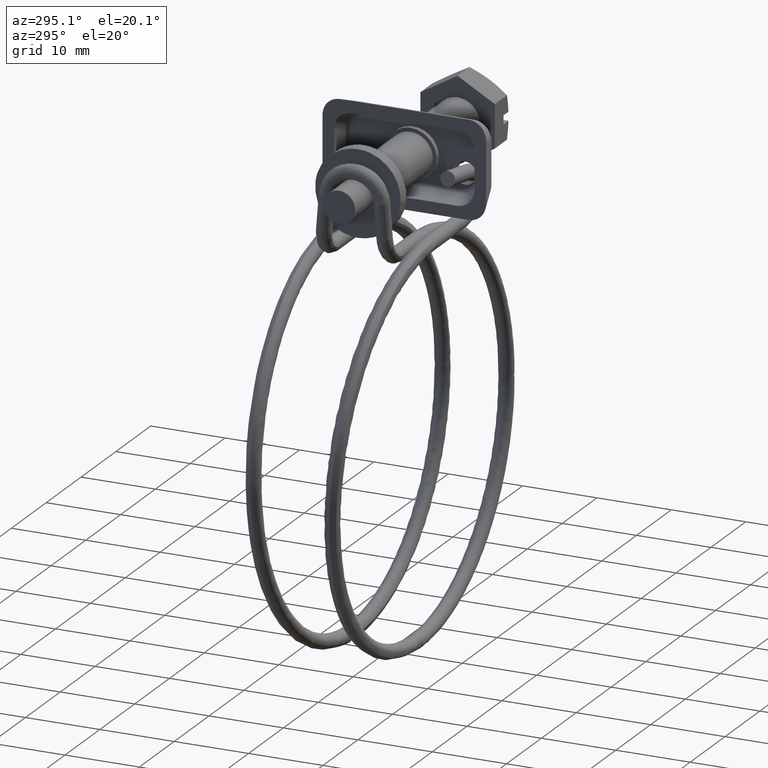
[diagram: clean part render]
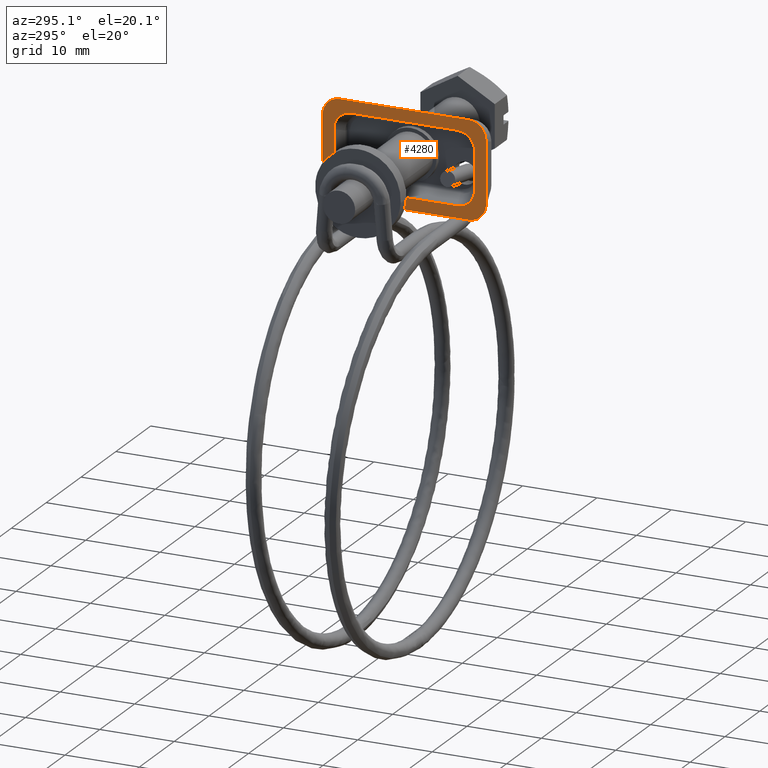
[diagram: same view with one face highlighted and labeled with its STEP entity id]
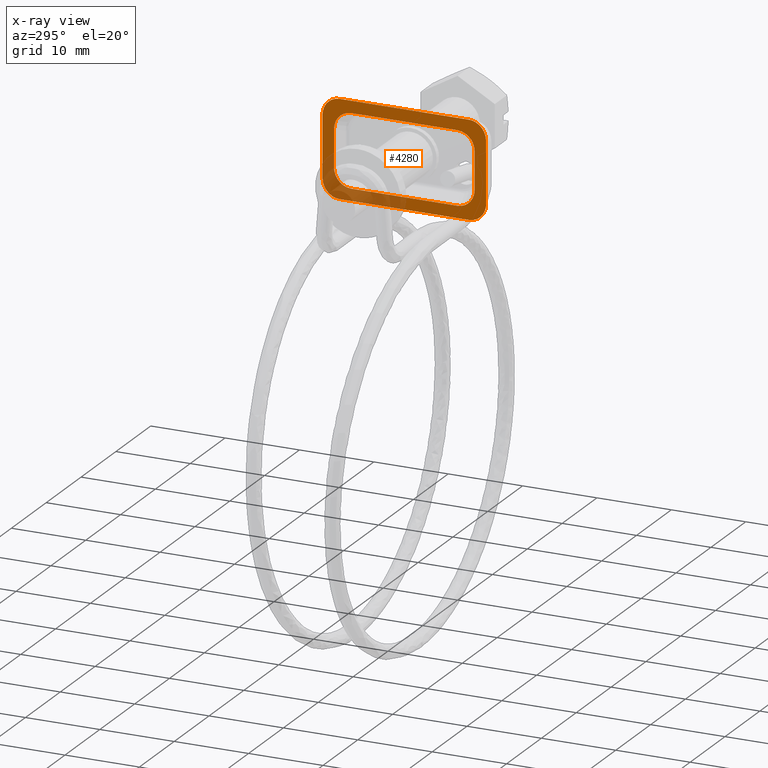
[diagram: x-ray of the same camera — body ghosted, the highlighted face saturated]
A machine part, auxiliary view. The second image highlights one B-rep face of the part: STEP entity #4280.
The next image is the same camera in x-ray: the body ghosted, the highlighted face saturated — about 23% of this face is hidden behind the body in this view.
In plain terms, the highlighted face is a freeform B-spline surface patch.
Its self-contained STEP definition (entity closure, byte-faithful):
#3773=CARTESIAN_POINT('',(-38.700000000000003,-9.453835362344231,-2.455375465696455));
#3774=VERTEX_POINT('',#3773);
#3782=CARTESIAN_POINT('',(-38.700000000000003,-7.096346438622450,-4.897999379502131));
#3783=VERTEX_POINT('',#3782);
#3789=CARTESIAN_POINT('',(-38.700000000000003,-9.453835362344169,-2.455375465696495));
#3790=CARTESIAN_POINT('',(-38.699999999999996,-9.453835362344108,-4.897999379502226));
#3791=CARTESIAN_POINT('',(-38.700000000000003,-7.096346438622450,-4.897999379502131));
#3799=(BOUNDED_CURVE()B_SPLINE_CURVE(2,(#3789,#3790,#3791),.UNSPECIFIED.,.F.,.U.)CURVE()GEOMETRIC_REPRESENTATION_ITEM()QUASI_UNIFORM_CURVE()RATIONAL_B_SPLINE_CURVE((1.0,0.736600277350803,1.0))REPRESENTATION_ITEM(''));
#3800=EDGE_CURVE('',#3774,#3783,#3799,.T.);
#3819=CARTESIAN_POINT('',(-38.700000000000003,7.096346438622000,-4.897999379502131));
#3820=VERTEX_POINT('',#3819);
#3828=CARTESIAN_POINT('',(-38.700000000000003,9.453835362344339,-2.455375465696360));
#3829=VERTEX_POINT('',#3828);
#3835=CARTESIAN_POINT('',(-38.700000000000003,7.096346438622005,-4.897999379502140));
#3836=CARTESIAN_POINT('',(-38.699999999999989,9.453835362344405,-4.897999379502303));
#3837=CARTESIAN_POINT('',(-38.700000000000003,9.453835362344339,-2.455375465696360));
#3845=(BOUNDED_CURVE()B_SPLINE_CURVE(2,(#3835,#3836,#3837),.UNSPECIFIED.,.F.,.U.)CURVE()GEOMETRIC_REPRESENTATION_ITEM()QUASI_UNIFORM_CURVE()RATIONAL_B_SPLINE_CURVE((1.0,0.736600277350721,1.0))REPRESENTATION_ITEM(''));
#3846=EDGE_CURVE('',#3820,#3829,#3845,.T.);
#3865=CARTESIAN_POINT('',(-38.700000000000003,9.453835362344339,2.455374465696385));
#3866=VERTEX_POINT('',#3865);
#3873=CARTESIAN_POINT('',(-38.700000000000003,7.096346438622230,4.897998379502161));
#3874=VERTEX_POINT('',#3873);
#3880=CARTESIAN_POINT('',(-38.700000000000003,9.453835362344339,2.455374465696385));
#3881=CARTESIAN_POINT('',(-38.699999999999989,9.453835362344014,4.897998379502210));
#3882=CARTESIAN_POINT('',(-38.700000000000003,7.096346438622204,4.897998379502179));
#3890=(BOUNDED_CURVE()B_SPLINE_CURVE(2,(#3880,#3881,#3882),.UNSPECIFIED.,.F.,.U.)CURVE()GEOMETRIC_REPRESENTATION_ITEM()QUASI_UNIFORM_CURVE()RATIONAL_B_SPLINE_CURVE((1.0,0.736600277350804,1.0))REPRESENTATION_ITEM(''));
#3891=EDGE_CURVE('',#3866,#3874,#3890,.T.);
#3910=CARTESIAN_POINT('',(-38.700000000000003,-7.096346438622230,4.897998379502161));
#3911=VERTEX_POINT('',#3910);
#3918=CARTESIAN_POINT('',(-38.700000000000003,-9.453835362344231,2.455374465696380));
#3919=VERTEX_POINT('',#3918);
#3925=CARTESIAN_POINT('',(-38.700000000000003,-7.096346438622241,4.897998379502179));
#3926=CARTESIAN_POINT('',(-38.700000000000003,-9.453835362344249,4.897998379502205));
#3927=CARTESIAN_POINT('',(-38.700000000000003,-9.453835362344169,2.455374465696290));
#3935=(BOUNDED_CURVE()B_SPLINE_CURVE(2,(#3925,#3926,#3927),.UNSPECIFIED.,.F.,.U.)CURVE()GEOMETRIC_REPRESENTATION_ITEM()QUASI_UNIFORM_CURVE()RATIONAL_B_SPLINE_CURVE((1.0,0.736600277350776,1.0))REPRESENTATION_ITEM(''));
#3936=EDGE_CURVE('',#3911,#3919,#3935,.T.);
#3955=CARTESIAN_POINT('',(-38.700000000000003,-11.0,4.057375086194185));
#3956=VERTEX_POINT('',#3955);
#3963=CARTESIAN_POINT('',(-38.700000000000003,-8.642511158470031,6.500000000000110));
#3964=VERTEX_POINT('',#3963);
#3970=CARTESIAN_POINT('',(-38.700000000000003,-11.0,4.057375086194185));
#3971=CARTESIAN_POINT('',(-38.700000000000003,-10.999999223404537,6.499998007051939));
#3972=CARTESIAN_POINT('',(-38.700000000000003,-8.642511158470031,6.500000000000110));
#3980=(BOUNDED_CURVE()B_SPLINE_CURVE(2,(#3970,#3971,#3972),.UNSPECIFIED.,.F.,.U.)CURVE()GEOMETRIC_REPRESENTATION_ITEM()QUASI_UNIFORM_CURVE()RATIONAL_B_SPLINE_CURVE((1.0,0.736600485733960,1.0))REPRESENTATION_ITEM(''));
#3981=EDGE_CURVE('',#3956,#3964,#3980,.T.);
#4000=CARTESIAN_POINT('',(-38.700000000000003,-8.642511076278339,-6.500000000000000));
#4001=VERTEX_POINT('',#4000);
#4008=CARTESIAN_POINT('',(-38.700000000000003,-11.0,-4.057376086194156));
#4009=VERTEX_POINT('',#4008);
#4015=CARTESIAN_POINT('',(-38.700000000000003,-8.642511076278327,-6.499999999999980));
#4016=CARTESIAN_POINT('',(-38.699999999999996,-10.999999999999945,-6.499999999999979));
#4017=CARTESIAN_POINT('',(-38.700000000000003,-11.0,-4.057376086194156));
#4025=(BOUNDED_CURVE()B_SPLINE_CURVE(2,(#4015,#4016,#4017),.UNSPECIFIED.,.F.,.U.)CURVE()GEOMETRIC_REPRESENTATION_ITEM()QUASI_UNIFORM_CURVE()RATIONAL_B_SPLINE_CURVE((1.0,0.736600277350831,1.0))REPRESENTATION_ITEM(''));
#4026=EDGE_CURVE('',#4001,#4009,#4025,.T.);
#4045=CARTESIAN_POINT('',(-38.700000000000003,11.000000000000121,-4.057376086194106));
#4046=VERTEX_POINT('',#4045);
#4053=CARTESIAN_POINT('',(-38.700000000000003,8.642511076278229,-6.500000000000000));
#4054=VERTEX_POINT('',#4053);
#4060=CARTESIAN_POINT('',(-38.700000000000003,11.000000000000121,-4.057376086194105));
#4061=CARTESIAN_POINT('',(-38.699999999999996,11.000000000000103,-6.499999999999749));
#4062=CARTESIAN_POINT('',(-38.700000000000003,8.642511076278229,-6.500000000000000));
#4070=(BOUNDED_CURVE()B_SPLINE_CURVE(2,(#4060,#4061,#4062),.UNSPECIFIED.,.F.,.U.)CURVE()GEOMETRIC_REPRESENTATION_ITEM()QUASI_UNIFORM_CURVE()RATIONAL_B_SPLINE_CURVE((1.0,0.736600277350816,1.0))REPRESENTATION_ITEM(''));
#4071=EDGE_CURVE('',#4046,#4054,#4070,.T.);
#4090=CARTESIAN_POINT('',(-38.700000000000003,8.642511158470031,6.500000000000110));
#4091=VERTEX_POINT('',#4090);
#4098=CARTESIAN_POINT('',(-38.700000000000003,11.000000000000121,4.057375086194250));
#4099=VERTEX_POINT('',#4098);
#4105=CARTESIAN_POINT('',(-38.700000000000003,8.642511158470031,6.500000000000110));
#4106=CARTESIAN_POINT('',(-38.699999999999996,11.000000345154032,6.500000075788750));
#4107=CARTESIAN_POINT('',(-38.700000000000003,11.000000000000121,4.057375086194250));
#4115=(BOUNDED_CURVE()B_SPLINE_CURVE(2,(#4105,#4106,#4107),.UNSPECIFIED.,.F.,.U.)CURVE()GEOMETRIC_REPRESENTATION_ITEM()QUASI_UNIFORM_CURVE()RATIONAL_B_SPLINE_CURVE((1.0,0.736600200372209,1.0))REPRESENTATION_ITEM(''));
#4116=EDGE_CURVE('',#4091,#4099,#4115,.T.);
#4130=CARTESIAN_POINT('',(-38.700000000000003,9.453835362344339,-2.455375465696360));
#4131=CARTESIAN_POINT('',(-38.700000000000003,9.453835362344339,2.455374465696385));
#4132=QUASI_UNIFORM_CURVE('',1,(#4130,#4131),.UNSPECIFIED.,.F.,.U.);
#4133=EDGE_CURVE('',#3829,#3866,#4132,.T.);
#4147=CARTESIAN_POINT('',(-38.700000000000003,-9.453835362344231,-2.455375465696455));
#4148=CARTESIAN_POINT('',(-38.700000000000003,-9.453835362344231,2.455374465696380));
#4149=QUASI_UNIFORM_CURVE('',1,(#4147,#4148),.UNSPECIFIED.,.F.,.U.);
#4150=EDGE_CURVE('',#3774,#3919,#4149,.T.);
#4163=CARTESIAN_POINT('',(-38.700000000000003,-7.096346438622450,-4.897999379502131));
#4164=CARTESIAN_POINT('',(-38.700000000000003,7.096346438622000,-4.897999379502131));
#4165=QUASI_UNIFORM_CURVE('',1,(#4163,#4164),.UNSPECIFIED.,.F.,.U.);
#4166=EDGE_CURVE('',#3783,#3820,#4165,.T.);
#4207=CARTESIAN_POINT('',(-38.700000000000003,-7.096346438622230,4.897998379502161));
#4208=CARTESIAN_POINT('',(-38.700000000000003,7.096346438622230,4.897998379502161));
#4209=QUASI_UNIFORM_CURVE('',1,(#4207,#4208),.UNSPECIFIED.,.F.,.U.);
#4210=EDGE_CURVE('',#3911,#3874,#4209,.T.);
#4223=CARTESIAN_POINT('',(-38.700000000000003,11.000000000000121,-4.057376086194106));
#4224=CARTESIAN_POINT('',(-38.700000000000003,11.000000000000121,4.057375086194250));
#4225=QUASI_UNIFORM_CURVE('',1,(#4223,#4224),.UNSPECIFIED.,.F.,.U.);
#4226=EDGE_CURVE('',#4046,#4099,#4225,.T.);
#4239=CARTESIAN_POINT('',(-38.700000000000003,-11.0,-4.057376086194156));
#4240=CARTESIAN_POINT('',(-38.700000000000003,-11.0,4.057375086194185));
#4241=QUASI_UNIFORM_CURVE('',1,(#4239,#4240),.UNSPECIFIED.,.F.,.U.);
#4242=EDGE_CURVE('',#4009,#3956,#4241,.T.);
#4247=CARTESIAN_POINT('',(-38.700000000000003,-12.098899957359739,-7.149349974803484));
#4248=CARTESIAN_POINT('',(-38.700000000000003,-12.098899957359739,7.149350323490763));
#4249=CARTESIAN_POINT('',(-38.700000000000003,12.098900547445840,-7.149349974803484));
#4250=CARTESIAN_POINT('',(-38.700000000000003,12.098900547445840,7.149350323490763));
#4251=B_SPLINE_SURFACE_WITH_KNOTS('',1,1,((#4247,#4249),(#4248,#4250)),.UNSPECIFIED.,.F.,.F.,.U.,(2,2),(2,2),(0.0,14.298700298294250),(0.0,24.197800504805581),.UNSPECIFIED.);
#4252=CARTESIAN_POINT('',(-38.700000000000003,-8.642511158470031,6.500000000000110));
#4253=CARTESIAN_POINT('',(-38.700000000000003,8.642511158470031,6.500000000000110));
#4254=QUASI_UNIFORM_CURVE('',1,(#4252,#4253),.UNSPECIFIED.,.F.,.U.);
#4255=EDGE_CURVE('',#3964,#4091,#4254,.T.);
#4256=ORIENTED_EDGE('',*,*,#4255,.T.);
#4257=ORIENTED_EDGE('',*,*,#4116,.T.);
#4258=ORIENTED_EDGE('',*,*,#4226,.F.);
#4259=ORIENTED_EDGE('',*,*,#4071,.T.);
#4260=CARTESIAN_POINT('',(-38.700000000000003,-8.642511076278339,-6.500000000000000));
#4261=CARTESIAN_POINT('',(-38.700000000000003,8.642511076278229,-6.500000000000000));
#4262=QUASI_UNIFORM_CURVE('',1,(#4260,#4261),.UNSPECIFIED.,.F.,.U.);
#4263=EDGE_CURVE('',#4001,#4054,#4262,.T.);
#4264=ORIENTED_EDGE('',*,*,#4263,.F.);
#4265=ORIENTED_EDGE('',*,*,#4026,.T.);
#4266=ORIENTED_EDGE('',*,*,#4242,.T.);
#4267=ORIENTED_EDGE('',*,*,#3981,.T.);
#4268=EDGE_LOOP('',(#4256,#4257,#4258,#4259,#4264,#4265,#4266,#4267));
#4269=FACE_OUTER_BOUND('',#4268,.T.);
#4270=ORIENTED_EDGE('',*,*,#4150,.F.);
#4271=ORIENTED_EDGE('',*,*,#3800,.T.);
#4272=ORIENTED_EDGE('',*,*,#4166,.T.);
#4273=ORIENTED_EDGE('',*,*,#3846,.T.);
#4274=ORIENTED_EDGE('',*,*,#4133,.T.);
#4275=ORIENTED_EDGE('',*,*,#3891,.T.);
#4276=ORIENTED_EDGE('',*,*,#4210,.F.);
#4277=ORIENTED_EDGE('',*,*,#3936,.T.);
#4278=EDGE_LOOP('',(#4270,#4271,#4272,#4273,#4274,#4275,#4276,#4277));
#4279=FACE_BOUND('',#4278,.T.);
#4280=ADVANCED_FACE('',(#4269,#4279),#4251,.T.);